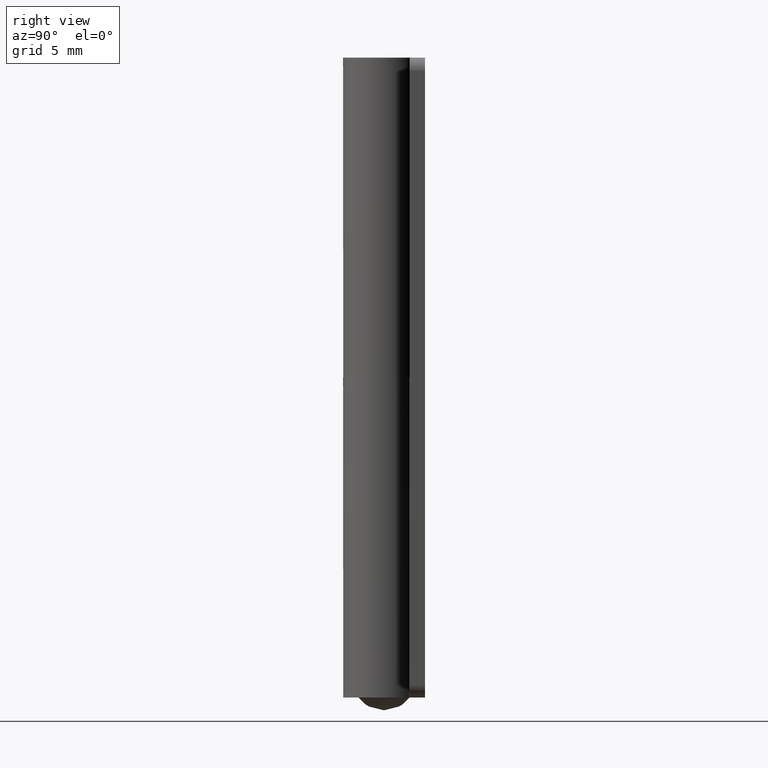
[diagram: clean part render]
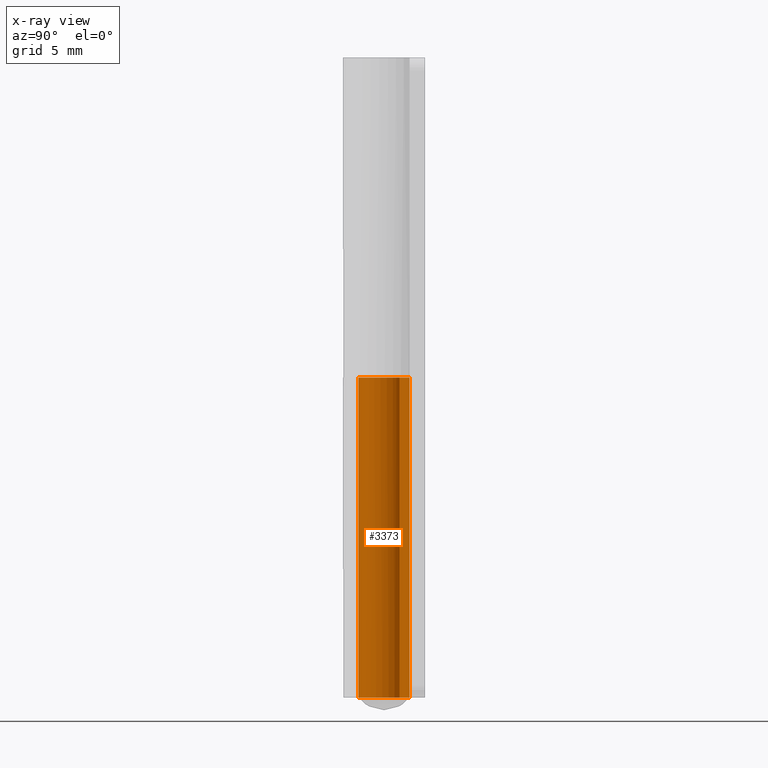
[diagram: x-ray — body ghosted, one internal face saturated and labeled with its STEP entity id]
A machine part, right view, then the same camera in x-ray: the body is ghosted and one INTERNAL B-rep face — a face not visible from any outside direction — is saturated and labeled: STEP entity #3373.
In plain terms, the highlighted face is a freeform B-spline surface patch.
Its self-contained STEP definition (entity closure, byte-faithful):
#2923=CARTESIAN_POINT('',(0.0,2.0,25.0));
#2924=VERTEX_POINT('',#2923);
#2925=CARTESIAN_POINT('',(1.585764307045660,1.218750000000000,25.0));
#2926=VERTEX_POINT('',#2925);
#2927=CARTESIAN_POINT('',(0.0,2.0,25.0));
#2928=CARTESIAN_POINT('',(-1.587628133991659,2.000000000000000,25.0));
#2929=CARTESIAN_POINT('',(-1.947841757381979,0.453775812708307,25.0));
#2930=CARTESIAN_POINT('',(-2.308055380772298,-1.092448374583385,25.0));
#2931=CARTESIAN_POINT('',(-0.883883476483185,-1.794087511800915,25.0));
#2932=CARTESIAN_POINT('',(0.540288427805928,-2.495726649018445,25.0));
#2933=CARTESIAN_POINT('',(1.546756814501378,-1.267889331445593,25.0));
#2934=CARTESIAN_POINT('',(2.553225201196827,-0.040052013872740,25.0));
#2935=CARTESIAN_POINT('',(1.585764307045660,1.218749999999999,25.0));
#2943=(BOUNDED_CURVE()B_SPLINE_CURVE(2,(#2927,#2928,#2929,#2930,#2931,#2932,#2933,#2934,#2935),.UNSPECIFIED.,.F.,.U.)B_SPLINE_CURVE_WITH_KNOTS((3,2,2,2,3),(0.0,0.250000000000000,0.500000000000000,0.750000000000000,1.0),.UNSPECIFIED.)CURVE()GEOMETRIC_REPRESENTATION_ITEM()RATIONAL_B_SPLINE_CURVE((1.0,0.783226629512223,1.0,0.783226629512223,1.0,0.783226629512223,1.0,0.783226629512223,1.0))REPRESENTATION_ITEM(''));
#2944=EDGE_CURVE('',#2924,#2926,#2943,.T.);
#3136=CARTESIAN_POINT('',(0.0,2.0,0.0));
#3137=VERTEX_POINT('',#3136);
#3143=CARTESIAN_POINT('',(1.585764307045660,1.218750000000000,0.0));
#3144=VERTEX_POINT('',#3143);
#3145=CARTESIAN_POINT('',(1.585764307045660,1.218750000000000,0.0));
#3146=CARTESIAN_POINT('',(2.553225201196828,-0.040052013872739,0.0));
#3147=CARTESIAN_POINT('',(1.546756814501378,-1.267889331445592,0.0));
#3148=CARTESIAN_POINT('',(0.540288427805929,-2.495726649018445,0.0));
#3149=CARTESIAN_POINT('',(-0.883883476483184,-1.794087511800916,0.0));
#3150=CARTESIAN_POINT('',(-2.308055380772298,-1.092448374583386,0.0));
#3151=CARTESIAN_POINT('',(-1.947841757381979,0.453775812708307,0.0));
#3152=CARTESIAN_POINT('',(-1.587628133991661,2.000000000000000,0.0));
#3153=CARTESIAN_POINT('',(0.0,2.0,0.0));
#3161=(BOUNDED_CURVE()B_SPLINE_CURVE(2,(#3145,#3146,#3147,#3148,#3149,#3150,#3151,#3152,#3153),.UNSPECIFIED.,.F.,.U.)B_SPLINE_CURVE_WITH_KNOTS((3,2,2,2,3),(0.0,0.250000000000000,0.500000000000000,0.750000000000000,1.0),.UNSPECIFIED.)CURVE()GEOMETRIC_REPRESENTATION_ITEM()RATIONAL_B_SPLINE_CURVE((1.0,0.783226629512223,1.0,0.783226629512223,1.0,0.783226629512223,1.0,0.783226629512223,1.0))REPRESENTATION_ITEM(''));
#3162=EDGE_CURVE('',#3144,#3137,#3161,.T.);
#3228=CARTESIAN_POINT('',(0.0,2.0,0.0));
#3229=CARTESIAN_POINT('',(0.0,2.0,25.0));
#3230=QUASI_UNIFORM_CURVE('',1,(#3228,#3229),.UNSPECIFIED.,.F.,.U.);
#3231=EDGE_CURVE('',#3137,#2924,#3230,.T.);
#3337=CARTESIAN_POINT('',(1.585764307045660,1.218750000000000,0.0));
#3338=CARTESIAN_POINT('',(1.585764307045660,1.218750000000000,25.0));
#3339=QUASI_UNIFORM_CURVE('',1,(#3337,#3338),.UNSPECIFIED.,.F.,.U.);
#3340=EDGE_CURVE('',#3144,#2926,#3339,.T.);
#3345=CARTESIAN_POINT('',(1.543249166775440,1.272156440555528,-0.625000000000001));
#3346=CARTESIAN_POINT('',(1.543249166775440,1.272156440555528,25.640625000000000));
#3347=CARTESIAN_POINT('',(3.191207842950463,-0.726977292381348,-0.625000000000001));
#3348=CARTESIAN_POINT('',(3.191207842950463,-0.726977292381348,25.640625000000007));
#3349=CARTESIAN_POINT('',(0.839960269921819,-1.815066595184007,-0.625000000000001));
#3350=CARTESIAN_POINT('',(0.839960269921819,-1.815066595184007,25.640625000000000));
#3351=CARTESIAN_POINT('',(-1.511287303106824,-2.903155897986665,-0.625000000000001));
#3352=CARTESIAN_POINT('',(-1.511287303106824,-2.903155897986665,25.640625000000007));
#3353=CARTESIAN_POINT('',(-1.968596930263858,-0.353024257177478,-0.625000000000001));
#3354=CARTESIAN_POINT('',(-1.968596930263858,-0.353024257177478,25.640625000000000));
#3355=CARTESIAN_POINT('',(-2.425906557420893,2.197107383631708,-0.625000000000001));
#3356=CARTESIAN_POINT('',(-2.425906557420893,2.197107383631708,25.640625000000007));
#3357=CARTESIAN_POINT('',(0.156918191455690,1.993834667466255,-0.625000000000001));
#3358=CARTESIAN_POINT('',(0.156918191455690,1.993834667466255,25.640625000000000));
#3366=(BOUNDED_SURFACE()B_SPLINE_SURFACE(1,2,((#3345,#3347,#3349,#3351,#3353,#3355,#3357),(#3346,#3348,#3350,#3352,#3354,#3356,#3358)),.UNSPECIFIED.,.F.,.F.,.U.)B_SPLINE_SURFACE_WITH_KNOTS((2,2),(3,2,2,3),(0.0,26.265625000000000),(0.0,3.930708565266664,7.861417130533329,11.792125695799990),.UNSPECIFIED.)GEOMETRIC_REPRESENTATION_ITEM()RATIONAL_B_SPLINE_SURFACE(((1.0,0.611066621529600,1.0,0.611066621529600,1.0,0.611066621529600,1.0),(1.0,0.611066621529600,1.0,0.611066621529600,1.0,0.611066621529600,1.0)))REPRESENTATION_ITEM('')SURFACE());
#3367=ORIENTED_EDGE('',*,*,#3231,.T.);
#3368=ORIENTED_EDGE('',*,*,#2944,.T.);
#3369=ORIENTED_EDGE('',*,*,#3340,.F.);
#3370=ORIENTED_EDGE('',*,*,#3162,.T.);
#3371=EDGE_LOOP('',(#3367,#3368,#3369,#3370));
#3372=FACE_OUTER_BOUND('',#3371,.T.);
#3373=ADVANCED_FACE('',(#3372),#3366,.F.);